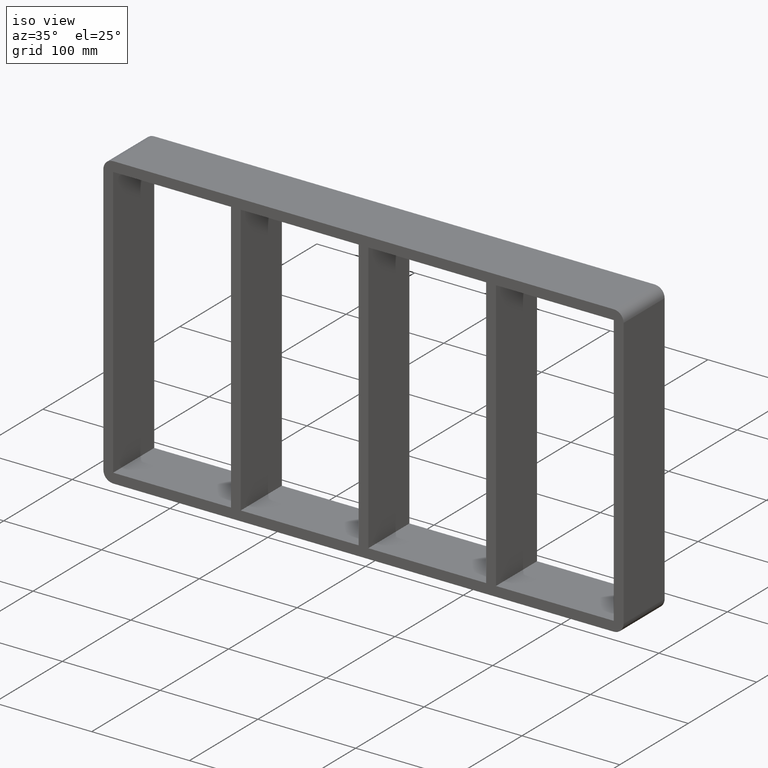
[diagram: clean part render]
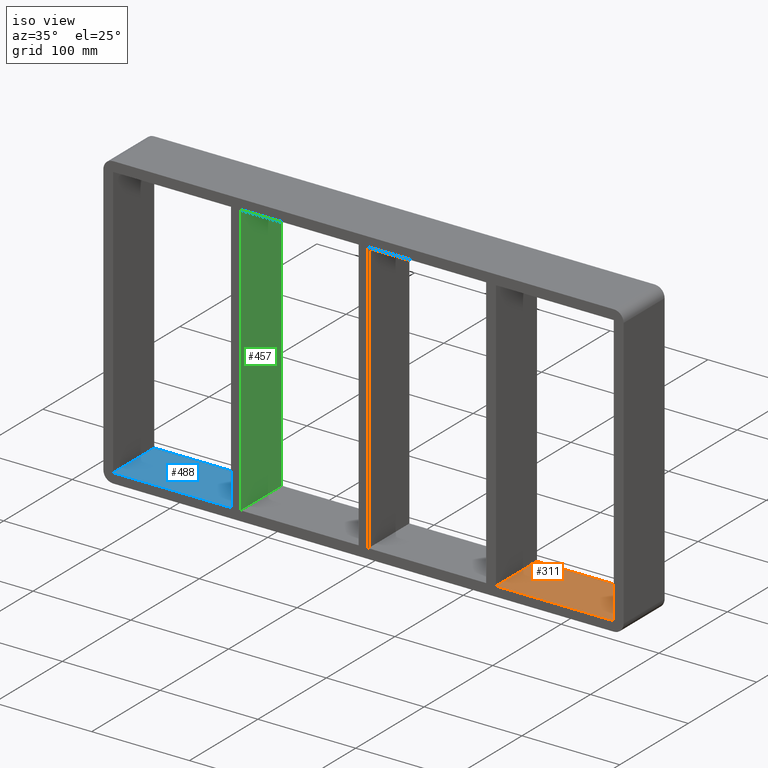
[diagram: same view with three faces highlighted in distinct colors, each labeled with its STEP entity id]
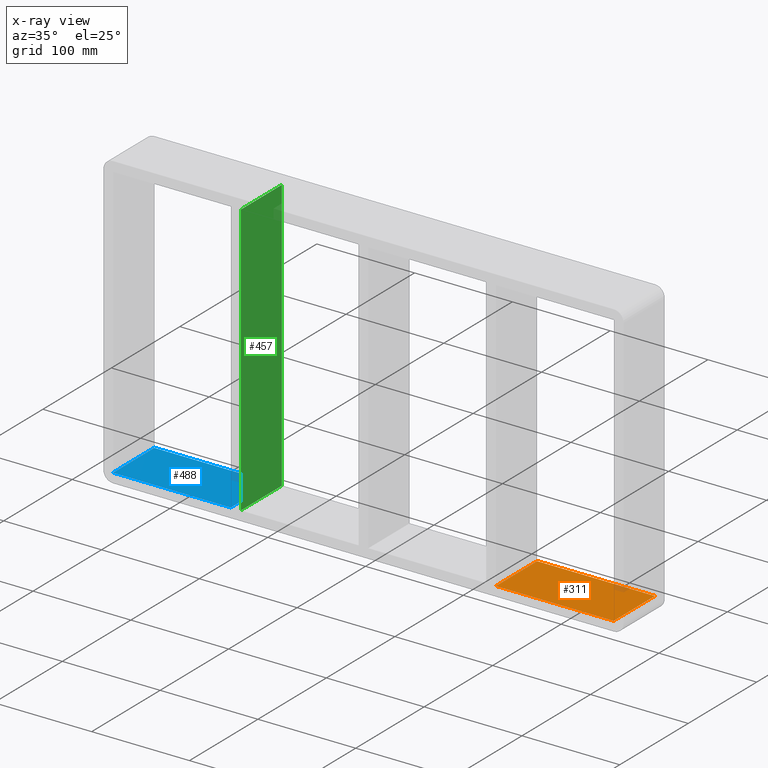
[diagram: x-ray of the same camera — body ghosted, the three highlighted faces saturated]
A machine part, iso view with three faces highlighted in distinct colors.
The next image is the same camera in x-ray (body ghosted, the three faces saturated) — at least one of them is partly hidden behind the body in this view.
Their STEP definitions:

[orange] entity #311 — the highlighted planar face has unit normal (0, 0, -1).
#115=CARTESIAN_POINT('',(135.50000000000728,-3.0,-138.99999999998417));
#116=VERTEX_POINT('',#115);
#123=CARTESIAN_POINT('',(135.50000000000728,57.0,-138.99999999998417));
#124=VERTEX_POINT('',#123);
#125=CARTESIAN_POINT('',(135.50000000000728,57.000000000000007,-139.0));
#126=DIRECTION('',(0.0,-1.0,0.0));
#127=VECTOR('',#126,60.000000000000007);
#128=LINE('',#125,#127);
#129=EDGE_CURVE('',#124,#116,#128,.T.);
#281=CARTESIAN_POINT('',(256.00000000000006,0.0,-139.0));
#282=DIRECTION('',(0.0,0.0,-1.0));
#283=DIRECTION('',(-1.0,0.0,0.0));
#284=AXIS2_PLACEMENT_3D('',#281,#282,#283);
#285=PLANE('',#284);
#286=ORIENTED_EDGE('',*,*,#129,.T.);
#287=CARTESIAN_POINT('',(256.00000000000006,-3.0,-139.0));
#288=VERTEX_POINT('',#287);
#289=CARTESIAN_POINT('',(256.00000000000006,-3.0,-139.0));
#290=DIRECTION('',(-1.0,0.0,0.0));
#291=VECTOR('',#290,120.49999999999275);
#292=LINE('',#289,#291);
#293=EDGE_CURVE('',#288,#116,#292,.T.);
#294=ORIENTED_EDGE('',*,*,#293,.F.);
#295=CARTESIAN_POINT('',(256.00000000000006,57.0,-139.0));
#296=VERTEX_POINT('',#295);
#297=CARTESIAN_POINT('',(256.00000000000006,57.0,-139.0));
#298=DIRECTION('',(0.0,-1.0,0.0));
#299=VECTOR('',#298,60.0);
#300=LINE('',#297,#299);
#301=EDGE_CURVE('',#296,#288,#300,.T.);
#302=ORIENTED_EDGE('',*,*,#301,.F.);
#303=CARTESIAN_POINT('',(135.5000000000073,57.0,-139.0));
#304=DIRECTION('',(1.0,0.0,0.0));
#305=VECTOR('',#304,120.49999999999275);
#306=LINE('',#303,#305);
#307=EDGE_CURVE('',#124,#296,#306,.T.);
#308=ORIENTED_EDGE('',*,*,#307,.F.);
#309=EDGE_LOOP('',(#286,#294,#302,#308));
#310=FACE_OUTER_BOUND('',#309,.T.);
#311=ADVANCED_FACE('',(#310),#285,.F.);

[blue] entity #488 — the highlighted planar face has unit normal (0, 0, -1).
#401=CARTESIAN_POINT('',(-135.50000000000128,-3.0,-139.0));
#402=VERTEX_POINT('',#401);
#419=CARTESIAN_POINT('',(-135.50000000000128,57.0,-139.0));
#420=VERTEX_POINT('',#419);
#427=CARTESIAN_POINT('',(-135.50000000000128,-3.0,-139.0));
#428=DIRECTION('',(0.0,1.0,0.0));
#429=VECTOR('',#428,60.000000000000007);
#430=LINE('',#427,#429);
#431=EDGE_CURVE('',#402,#420,#430,.T.);
#458=CARTESIAN_POINT('',(256.00000000000006,0.0,-139.0));
#459=DIRECTION('',(0.0,0.0,-1.0));
#460=DIRECTION('',(-1.0,0.0,0.0));
#461=AXIS2_PLACEMENT_3D('',#458,#459,#460);
#462=PLANE('',#461);
#463=ORIENTED_EDGE('',*,*,#431,.T.);
#464=CARTESIAN_POINT('',(-255.99999999999997,57.0,-139.0));
#465=VERTEX_POINT('',#464);
#466=CARTESIAN_POINT('',(-255.99999999999997,57.0,-139.0));
#467=DIRECTION('',(1.0,0.0,0.0));
#468=VECTOR('',#467,120.49999999999869);
#469=LINE('',#466,#468);
#470=EDGE_CURVE('',#465,#420,#469,.T.);
#471=ORIENTED_EDGE('',*,*,#470,.F.);
#472=CARTESIAN_POINT('',(-255.99999999999997,-3.0,-139.0));
#473=VERTEX_POINT('',#472);
#474=CARTESIAN_POINT('',(-256.0,-3.0,-139.0));
#475=DIRECTION('',(0.0,1.0,0.0));
#476=VECTOR('',#475,60.0);
#477=LINE('',#474,#476);
#478=EDGE_CURVE('',#473,#465,#477,.T.);
#479=ORIENTED_EDGE('',*,*,#478,.F.);
#480=CARTESIAN_POINT('',(-135.50000000000128,-3.0,-139.0));
#481=DIRECTION('',(-1.0,0.0,0.0));
#482=VECTOR('',#481,120.49999999999869);
#483=LINE('',#480,#482);
#484=EDGE_CURVE('',#402,#473,#483,.T.);
#485=ORIENTED_EDGE('',*,*,#484,.F.);
#486=EDGE_LOOP('',(#463,#471,#479,#485));
#487=FACE_OUTER_BOUND('',#486,.T.);
#488=ADVANCED_FACE('',(#487),#462,.F.);

[green] entity #457 — the highlighted planar face has unit normal (1, 0, 0).
#234=CARTESIAN_POINT('',(-125.49999999999272,57.0,-138.99999999998417));
#235=VERTEX_POINT('',#234);
#242=CARTESIAN_POINT('',(-125.49999999999272,-3.0,-138.99999999998417));
#243=VERTEX_POINT('',#242);
#244=CARTESIAN_POINT('',(-125.49999999999274,57.000000000000007,-139.0));
#245=DIRECTION('',(0.0,-1.0,0.0));
#246=VECTOR('',#245,60.000000000000007);
#247=LINE('',#244,#246);
#248=EDGE_CURVE('',#235,#243,#247,.T.);
#318=CARTESIAN_POINT('',(-125.49999999999272,-3.0,139.00000000000003));
#319=VERTEX_POINT('',#318);
#326=CARTESIAN_POINT('',(-125.49999999999272,57.0,139.00000000000003));
#327=VERTEX_POINT('',#326);
#328=CARTESIAN_POINT('',(-125.49999999999272,-3.0,139.00000000000003));
#329=DIRECTION('',(0.0,1.0,0.0));
#330=VECTOR('',#329,60.000000000000007);
#331=LINE('',#328,#330);
#332=EDGE_CURVE('',#319,#327,#331,.T.);
#436=CARTESIAN_POINT('',(-125.49999999999272,-3.0,139.00000000000003));
#437=DIRECTION('',(1.0,0.0,0.0));
#438=DIRECTION('',(0.0,0.0,-1.0));
#439=AXIS2_PLACEMENT_3D('',#436,#437,#438);
#440=PLANE('',#439);
#441=CARTESIAN_POINT('',(-125.49999999999272,-3.0,139.00000000000003));
#442=DIRECTION('',(0.0,0.0,-1.0));
#443=VECTOR('',#442,277.9999999999842);
#444=LINE('',#441,#443);
#445=EDGE_CURVE('',#319,#243,#444,.T.);
#446=ORIENTED_EDGE('',*,*,#445,.T.);
#447=ORIENTED_EDGE('',*,*,#248,.F.);
#448=CARTESIAN_POINT('',(-125.49999999999272,57.0,139.00000000000003));
#449=DIRECTION('',(0.0,0.0,-1.0));
#450=VECTOR('',#449,277.9999999999842);
#451=LINE('',#448,#450);
#452=EDGE_CURVE('',#327,#235,#451,.T.);
#453=ORIENTED_EDGE('',*,*,#452,.F.);
#454=ORIENTED_EDGE('',*,*,#332,.F.);
#455=EDGE_LOOP('',(#446,#447,#453,#454));
#456=FACE_OUTER_BOUND('',#455,.T.);
#457=ADVANCED_FACE('',(#456),#440,.T.);